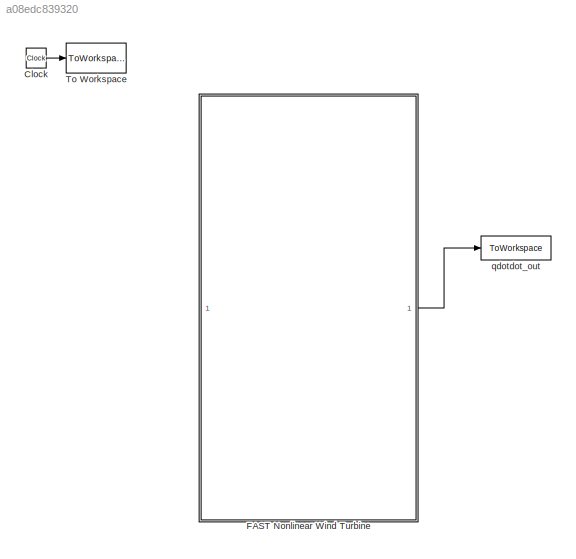
MODEL mdl_a08edc839320
KIND model
CONFIG AbsTol = auto
CONFIG EnableMultiTasking = on
CONFIG FixedStep = DT
CONFIG MaxStep = DT
CONFIG MinStep = auto
CONFIG RelTol = 1e-3
CONFIG SampleTimeConstraint = Unconstrained
CONFIG SolverName = ode4
CONFIG StartTime = 0.0
CONFIG StopTime = TMax
BLOCK [Clock] Clock
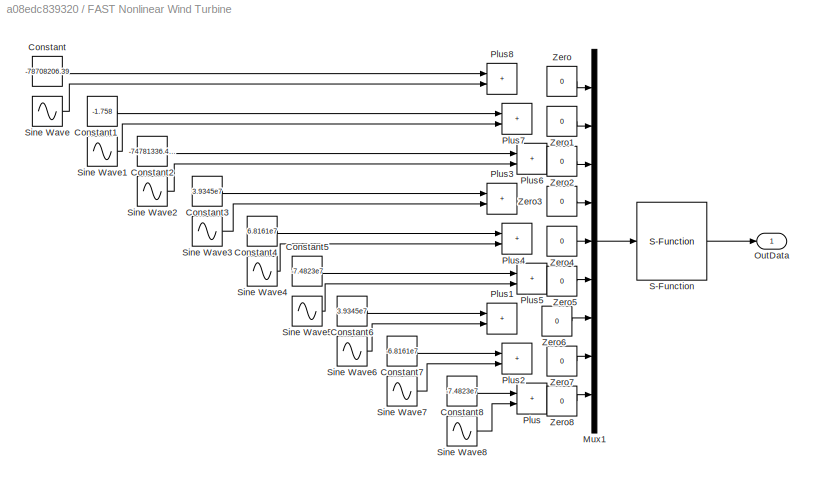
BLOCK [SubSystem] FAST Nonlinear Wind Turbine
BLOCK [Constant] FAST Nonlinear Wind Turbine/Constant
  Commented = on
  Value = -78708206.39
BLOCK [Constant] FAST Nonlinear Wind Turbine/Constant1
  Commented = on
  Value = -1.758
BLOCK [Constant] FAST Nonlinear Wind Turbine/Constant2
  Commented = on
  Value = -74781336.46
BLOCK [Constant] FAST Nonlinear Wind Turbine/Constant3
  Commented = on
  Value = 3.9345e7
BLOCK [Constant] FAST Nonlinear Wind Turbine/Constant4
  Commented = on
  Value = 6.8161e7
BLOCK [Constant] FAST Nonlinear Wind Turbine/Constant5
  Commented = on
  Value = -7.4823e7
BLOCK [Constant] FAST Nonlinear Wind Turbine/Constant6
  Commented = on
  Value = 3.9345e7
BLOCK [Constant] FAST Nonlinear Wind Turbine/Constant7
  Commented = on
  Value = -6.8161e7
BLOCK [Constant] FAST Nonlinear Wind Turbine/Constant8
  Commented = on
  Value = -7.4823e7
BLOCK [Mux] FAST Nonlinear Wind Turbine/Mux1
  DisplayOption = bar
  Inputs = 9
BLOCK [Outport] FAST Nonlinear Wind Turbine/OutData
BLOCK [Sum] FAST Nonlinear Wind Turbine/Plus
  Commented = on
  IconShape = rectangular
BLOCK [Sum] FAST Nonlinear Wind Turbine/Plus1
  Commented = on
  IconShape = rectangular
BLOCK [Sum] FAST Nonlinear Wind Turbine/Plus2
  Commented = on
  IconShape = rectangular
BLOCK [Sum] FAST Nonlinear Wind Turbine/Plus3
  Commented = on
  IconShape = rectangular
BLOCK [Sum] FAST Nonlinear Wind Turbine/Plus4
  Commented = on
  IconShape = rectangular
BLOCK [Sum] FAST Nonlinear Wind Turbine/Plus5
  Commented = on
  IconShape = rectangular
BLOCK [Sum] FAST Nonlinear Wind Turbine/Plus6
  Commented = on
  IconShape = rectangular
BLOCK [Sum] FAST Nonlinear Wind Turbine/Plus7
  Commented = on
  IconShape = rectangular
BLOCK [Sum] FAST Nonlinear Wind Turbine/Plus8
  Commented = on
  IconShape = rectangular
BLOCK [S-Function] FAST Nonlinear Wind Turbine/S-Function
  EnableBusSupport = off
  FunctionName = FAST_SFunc
  Parameters = FAST_InputFileName, TMax, 0
  SFcnIsStateOwnerBlock = off
  SFunctionDeploymentMode = off
BLOCK [Sin] FAST Nonlinear Wind Turbine/Sine Wave
  Amplitude = 22011
  Commented = on
  SampleTime = 0
BLOCK [Sin] FAST Nonlinear Wind Turbine/Sine Wave1
  Amplitude = 510.6
  Commented = on
  SampleTime = 0
BLOCK [Sin] FAST Nonlinear Wind Turbine/Sine Wave2
  Amplitude = 35425
  Commented = on
  SampleTime = 0
BLOCK [Sin] FAST Nonlinear Wind Turbine/Sine Wave3
  Amplitude = 25362
  Commented = on
  SampleTime = 0
BLOCK [Sin] FAST Nonlinear Wind Turbine/Sine Wave4
  Amplitude = 4632
  Commented = on
  SampleTime = 0
BLOCK [Sin] FAST Nonlinear Wind Turbine/Sine Wave5
  Amplitude = 28207
  Commented = on
  SampleTime = 0
BLOCK [Sin] FAST Nonlinear Wind Turbine/Sine Wave6
  Amplitude = 24550
  Commented = on
  SampleTime = 0
BLOCK [Sin] FAST Nonlinear Wind Turbine/Sine Wave7
  Amplitude = 5087
  Commented = on
  SampleTime = 0
BLOCK [Sin] FAST Nonlinear Wind Turbine/Sine Wave8
  Amplitude = 28166
  Commented = on
  SampleTime = 0
BLOCK [Constant] FAST Nonlinear Wind Turbine/Zero
  OutDataTypeStr = Inherit: Inherit via back propagation
  Value = 0
BLOCK [Constant] FAST Nonlinear Wind Turbine/Zero1
  OutDataTypeStr = Inherit: Inherit via back propagation
  Value = 0
BLOCK [Constant] FAST Nonlinear Wind Turbine/Zero2
  OutDataTypeStr = Inherit: Inherit via back propagation
  Value = 0
BLOCK [Constant] FAST Nonlinear Wind Turbine/Zero3
  OutDataTypeStr = Inherit: Inherit via back propagation
  Value = 0
BLOCK [Constant] FAST Nonlinear Wind Turbine/Zero4
  OutDataTypeStr = Inherit: Inherit via back propagation
  Value = 0
BLOCK [Constant] FAST Nonlinear Wind Turbine/Zero5
  OutDataTypeStr = Inherit: Inherit via back propagation
  Value = 0
BLOCK [Constant] FAST Nonlinear Wind Turbine/Zero6
  OutDataTypeStr = Inherit: Inherit via back propagation
  Value = 0
BLOCK [Constant] FAST Nonlinear Wind Turbine/Zero7
  OutDataTypeStr = Inherit: Inherit via back propagation
  Value = 0
BLOCK [Constant] FAST Nonlinear Wind Turbine/Zero8
  OutDataTypeStr = Inherit: Inherit via back propagation
  Value = 0
BLOCK [ToWorkspace] To Workspace
  MaxDataPoints = inf
  SampleTime = -1
  VariableName = Time
BLOCK [ToWorkspace] qdotdot_out
  MaxDataPoints = inf
  SampleTime = -1
  VariableName = OutData
LINE Clock:1 -> To Workspace:1
LINE FAST Nonlinear Wind Turbine/Constant1:1 -> FAST Nonlinear Wind Turbine/Plus7:1
LINE FAST Nonlinear Wind Turbine/Constant2:1 -> FAST Nonlinear Wind Turbine/Plus6:1
LINE FAST Nonlinear Wind Turbine/Constant3:1 -> FAST Nonlinear Wind Turbine/Plus3:1
LINE FAST Nonlinear Wind Turbine/Constant4:1 -> FAST Nonlinear Wind Turbine/Plus4:1
LINE FAST Nonlinear Wind Turbine/Constant5:1 -> FAST Nonlinear Wind Turbine/Plus5:1
LINE FAST Nonlinear Wind Turbine/Constant6:1 -> FAST Nonlinear Wind Turbine/Plus1:1
LINE FAST Nonlinear Wind Turbine/Constant7:1 -> FAST Nonlinear Wind Turbine/Plus2:1
LINE FAST Nonlinear Wind Turbine/Constant8:1 -> FAST Nonlinear Wind Turbine/Plus:1
LINE FAST Nonlinear Wind Turbine/Constant:1 -> FAST Nonlinear Wind Turbine/Plus8:1
LINE FAST Nonlinear Wind Turbine/Mux1:1 -> FAST Nonlinear Wind Turbine/S-Function:1
LINE FAST Nonlinear Wind Turbine/S-Function:1 -> FAST Nonlinear Wind Turbine/OutData:1
LINE FAST Nonlinear Wind Turbine/Sine Wave1:1 -> FAST Nonlinear Wind Turbine/Plus7:2
LINE FAST Nonlinear Wind Turbine/Sine Wave2:1 -> FAST Nonlinear Wind Turbine/Plus6:2
LINE FAST Nonlinear Wind Turbine/Sine Wave3:1 -> FAST Nonlinear Wind Turbine/Plus3:2
LINE FAST Nonlinear Wind Turbine/Sine Wave4:1 -> FAST Nonlinear Wind Turbine/Plus4:2
LINE FAST Nonlinear Wind Turbine/Sine Wave5:1 -> FAST Nonlinear Wind Turbine/Plus5:2
LINE FAST Nonlinear Wind Turbine/Sine Wave6:1 -> FAST Nonlinear Wind Turbine/Plus1:2
LINE FAST Nonlinear Wind Turbine/Sine Wave7:1 -> FAST Nonlinear Wind Turbine/Plus2:2
LINE FAST Nonlinear Wind Turbine/Sine Wave8:1 -> FAST Nonlinear Wind Turbine/Plus:2
LINE FAST Nonlinear Wind Turbine/Sine Wave:1 -> FAST Nonlinear Wind Turbine/Plus8:2
LINE FAST Nonlinear Wind Turbine/Zero1:1 -> FAST Nonlinear Wind Turbine/Mux1:2
LINE FAST Nonlinear Wind Turbine/Zero2:1 -> FAST Nonlinear Wind Turbine/Mux1:3
LINE FAST Nonlinear Wind Turbine/Zero3:1 -> FAST Nonlinear Wind Turbine/Mux1:4
LINE FAST Nonlinear Wind Turbine/Zero4:1 -> FAST Nonlinear Wind Turbine/Mux1:5
LINE FAST Nonlinear Wind Turbine/Zero5:1 -> FAST Nonlinear Wind Turbine/Mux1:6
LINE FAST Nonlinear Wind Turbine/Zero6:1 -> FAST Nonlinear Wind Turbine/Mux1:7
LINE FAST Nonlinear Wind Turbine/Zero7:1 -> FAST Nonlinear Wind Turbine/Mux1:8
LINE FAST Nonlinear Wind Turbine/Zero8:1 -> FAST Nonlinear Wind Turbine/Mux1:9
LINE FAST Nonlinear Wind Turbine/Zero:1 -> FAST Nonlinear Wind Turbine/Mux1:1
LINE FAST Nonlinear Wind Turbine:1 -> qdotdot_out:1
